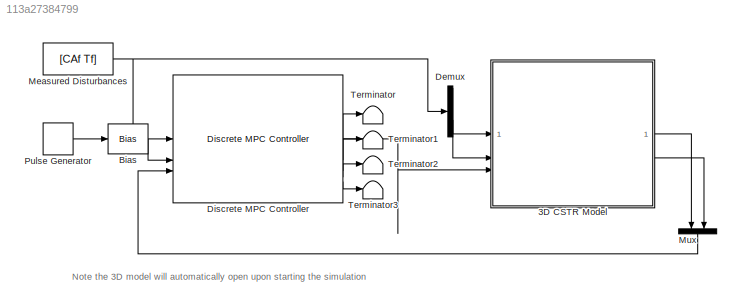
MODEL mdl_113a27384799
KIND model
CONFIG AbsTol = auto
CONFIG EnableMultiTasking = on
CONFIG FixedStep = auto
CONFIG InitFcn = CSTR_Setup
CONFIG MaxStep = auto
CONFIG MinStep = auto
CONFIG RelTol = 1e-3
CONFIG SampleTimeConstraint = Unconstrained
CONFIG SolverName = ode15s
CONFIG StartTime = 0.0
CONFIG StopTime = inf
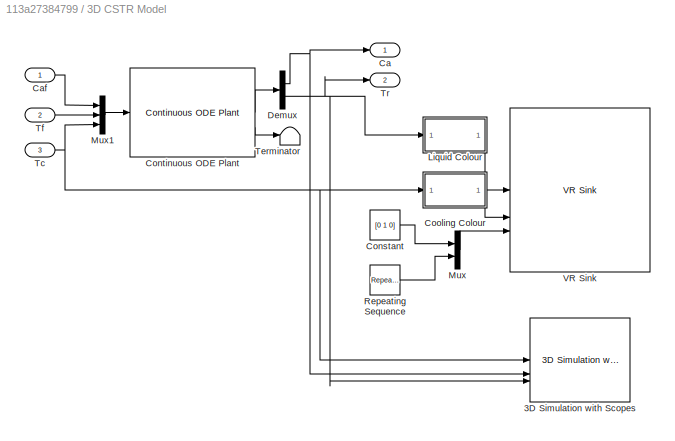
BLOCK [SubSystem] 3D CSTR Model
BLOCK [Reference] 3D CSTR Model/3D Simulation with Scopes  REF=jMPClib/Displays/3D Simulation with Scopes
  SourceBlock = jMPClib/Displays/3D Simulation with Scopes
  SourceProductName = JMPC Toolbox
  SourceType = jMPC 3D Simulation Interface
BLOCK [Outport] 3D CSTR Model/Ca
BLOCK [Inport] 3D CSTR Model/Caf
BLOCK [Constant] 3D CSTR Model/Constant
  Value = [0 1 0]
BLOCK [Reference] 3D CSTR Model/Continuous ODE Plant  REF=jMPClib/MPC Blocks/Continuous ODE Plant
  SourceBlock = jMPClib/MPC Blocks/Continuous ODE Plant
  SourceProductName = JMPC Toolbox
  SourceType = Continuous ODE Model
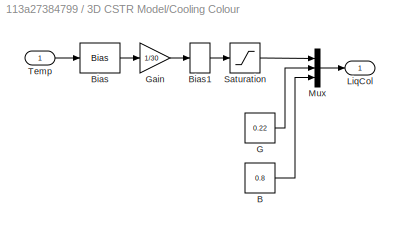
BLOCK [SubSystem] 3D CSTR Model/Cooling Colour
BLOCK [Constant] 3D CSTR Model/Cooling Colour/B
  Value = 0.8
BLOCK [Bias] 3D CSTR Model/Cooling Colour/Bias
  Bias = -300
  SaturateOnIntegerOverflow = off
BLOCK [Bias] 3D CSTR Model/Cooling Colour/Bias1
  Bias = 0.5
  SaturateOnIntegerOverflow = off
BLOCK [Constant] 3D CSTR Model/Cooling Colour/G
  Value = 0.22
BLOCK [Gain] 3D CSTR Model/Cooling Colour/Gain
  Gain = 1/30
BLOCK [Outport] 3D CSTR Model/Cooling Colour/LiqCol
BLOCK [Mux] 3D CSTR Model/Cooling Colour/Mux
  DisplayOption = bar
  Inputs = 3
BLOCK [Saturate] 3D CSTR Model/Cooling Colour/Saturation
  LowerLimit = 0
  UpperLimit = 1
BLOCK [Inport] 3D CSTR Model/Cooling Colour/Temp
BLOCK [Demux] 3D CSTR Model/Demux
  Outputs = 2
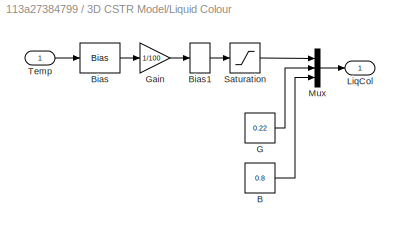
BLOCK [SubSystem] 3D CSTR Model/Liquid Colour
BLOCK [Constant] 3D CSTR Model/Liquid Colour/B
  Value = 0.8
BLOCK [Bias] 3D CSTR Model/Liquid Colour/Bias
  Bias = -350
  SaturateOnIntegerOverflow = off
BLOCK [Bias] 3D CSTR Model/Liquid Colour/Bias1
  Bias = 0.5
  SaturateOnIntegerOverflow = off
BLOCK [Constant] 3D CSTR Model/Liquid Colour/G
  Value = 0.22
BLOCK [Gain] 3D CSTR Model/Liquid Colour/Gain
  Gain = 1/100
BLOCK [Outport] 3D CSTR Model/Liquid Colour/LiqCol
BLOCK [Mux] 3D CSTR Model/Liquid Colour/Mux
  DisplayOption = bar
  Inputs = 3
BLOCK [Saturate] 3D CSTR Model/Liquid Colour/Saturation
  LowerLimit = 0
  UpperLimit = 1
BLOCK [Inport] 3D CSTR Model/Liquid Colour/Temp
BLOCK [Mux] 3D CSTR Model/Mux
  DisplayOption = bar
  Inputs = 2
BLOCK [Mux] 3D CSTR Model/Mux1
  DisplayOption = bar
  Inputs = 3
BLOCK [Reference] 3D CSTR Model/Repeating Sequence  REF=simulink/Sources/Repeating
Sequence
  SourceBlock = simulink/Sources/Repeating\nSequence
  SourceType = Repeating table
BLOCK [Inport] 3D CSTR Model/Tc
  Port = 3
BLOCK [Terminator] 3D CSTR Model/Terminator
BLOCK [Inport] 3D CSTR Model/Tf
  Port = 2
BLOCK [Outport] 3D CSTR Model/Tr
  Port = 2
BLOCK [Reference] 3D CSTR Model/VR Sink  REF=vrlib/VR Sink
  InstantiateOnLoad = on
  SourceBlock = vrlib/VR Sink
  SourceType = Virtual Reality Sink
BLOCK [Bias] Bias
  Bias = -25.0
  SaturateOnIntegerOverflow = off
BLOCK [Demux] Demux
  Outputs = 2
BLOCK [Reference] Discrete MPC Controller  REF=jMPClib/MPC Blocks/Discrete MPC Controller
  SourceBlock = jMPClib/MPC Blocks/Discrete MPC Controller
  SourceProductName = JMPC Toolbox
  SourceType = Model Predictive Controller
BLOCK [Constant] Measured Disturbances
  Value = [CAf Tf]
BLOCK [Mux] Mux
  DisplayOption = bar
  Inputs = 2
  NameLocation = left
BLOCK [DiscretePulseGenerator] Pulse Generator
  Amplitude = 50
  Period = 20
  PulseType = Time based
  PulseWidth = 50
BLOCK [Terminator] Terminator
BLOCK [Terminator] Terminator1
BLOCK [Terminator] Terminator2
BLOCK [Terminator] Terminator3
ANNOTATION (root): Note the 3D model will automatically open upon starting the simulation
LINE 3D CSTR Model/Caf:1 -> 3D CSTR Model/Mux1:1
LINE 3D CSTR Model/Constant:1 -> 3D CSTR Model/Mux:1
LINE 3D CSTR Model/Continuous ODE Plant:1 -> 3D CSTR Model/Demux:1
LINE 3D CSTR Model/Continuous ODE Plant:2 -> 3D CSTR Model/Terminator:1
LINE 3D CSTR Model/Cooling Colour/B:1 -> 3D CSTR Model/Cooling Colour/Mux:3
LINE 3D CSTR Model/Cooling Colour/Bias1:1 -> 3D CSTR Model/Cooling Colour/Saturation:1
LINE 3D CSTR Model/Cooling Colour/Bias:1 -> 3D CSTR Model/Cooling Colour/Gain:1
LINE 3D CSTR Model/Cooling Colour/G:1 -> 3D CSTR Model/Cooling Colour/Mux:2
LINE 3D CSTR Model/Cooling Colour/Gain:1 -> 3D CSTR Model/Cooling Colour/Bias1:1
LINE 3D CSTR Model/Cooling Colour/Mux:1 -> 3D CSTR Model/Cooling Colour/LiqCol:1
LINE 3D CSTR Model/Cooling Colour/Saturation:1 -> 3D CSTR Model/Cooling Colour/Mux:1
LINE 3D CSTR Model/Cooling Colour/Temp:1 -> 3D CSTR Model/Cooling Colour/Bias:1
LINE 3D CSTR Model/Cooling Colour:1 -> 3D CSTR Model/VR Sink:2
NET 3D CSTR Model/Demux:1 -> 3D CSTR Model/3D Simulation with Scopes:2, 3D CSTR Model/Ca:1
NET 3D CSTR Model/Demux:2 -> 3D CSTR Model/3D Simulation with Scopes:3, 3D CSTR Model/Liquid Colour:1, 3D CSTR Model/Tr:1
LINE 3D CSTR Model/Liquid Colour/B:1 -> 3D CSTR Model/Liquid Colour/Mux:3
LINE 3D CSTR Model/Liquid Colour/Bias1:1 -> 3D CSTR Model/Liquid Colour/Saturation:1
LINE 3D CSTR Model/Liquid Colour/Bias:1 -> 3D CSTR Model/Liquid Colour/Gain:1
LINE 3D CSTR Model/Liquid Colour/G:1 -> 3D CSTR Model/Liquid Colour/Mux:2
LINE 3D CSTR Model/Liquid Colour/Gain:1 -> 3D CSTR Model/Liquid Colour/Bias1:1
LINE 3D CSTR Model/Liquid Colour/Mux:1 -> 3D CSTR Model/Liquid Colour/LiqCol:1
LINE 3D CSTR Model/Liquid Colour/Saturation:1 -> 3D CSTR Model/Liquid Colour/Mux:1
LINE 3D CSTR Model/Liquid Colour/Temp:1 -> 3D CSTR Model/Liquid Colour/Bias:1
LINE 3D CSTR Model/Liquid Colour:1 -> 3D CSTR Model/VR Sink:1
LINE 3D CSTR Model/Mux1:1 -> 3D CSTR Model/Continuous ODE Plant:1
LINE 3D CSTR Model/Mux:1 -> 3D CSTR Model/VR Sink:3
LINE 3D CSTR Model/Repeating Sequence:1 -> 3D CSTR Model/Mux:2
NET 3D CSTR Model/Tc:1 -> 3D CSTR Model/3D Simulation with Scopes:1, 3D CSTR Model/Cooling Colour:1, 3D CSTR Model/Mux1:3
LINE 3D CSTR Model/Tf:1 -> 3D CSTR Model/Mux1:2
LINE 3D CSTR Model:1 -> Mux:1
LINE 3D CSTR Model:2 -> Mux:2
LINE Bias:1 -> Discrete MPC Controller:2
LINE Demux:1 -> 3D CSTR Model:1
LINE Demux:2 -> 3D CSTR Model:2
LINE Discrete MPC Controller:1 -> 3D CSTR Model:3
LINE Discrete MPC Controller:2 -> Terminator:1
LINE Discrete MPC Controller:3 -> Terminator1:1
LINE Discrete MPC Controller:4 -> Terminator2:1
LINE Discrete MPC Controller:5 -> Terminator3:1
NET Measured Disturbances:1 -> Demux:1, Discrete MPC Controller:1
LINE Mux:1 -> Discrete MPC Controller:3
LINE Pulse Generator:1 -> Bias:1
note: NET lines group one-source signal fan-out (src -> all destinations, sorted); 1:1 wires keep LINE
